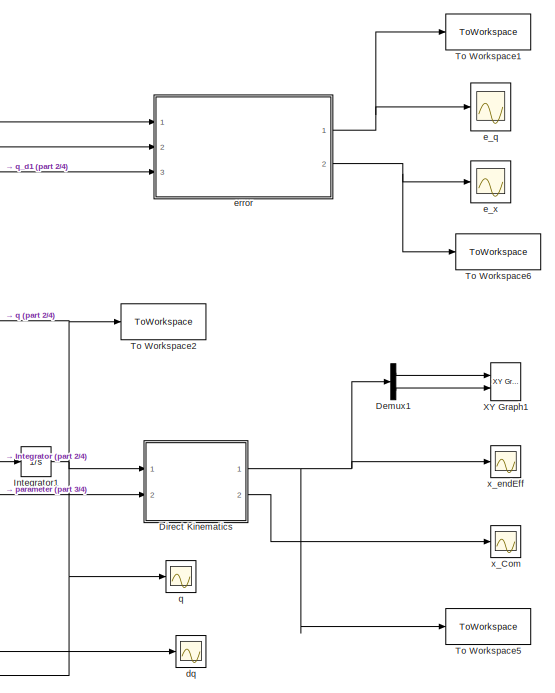
[diagram: root canvas - part 1/4, middle right region]
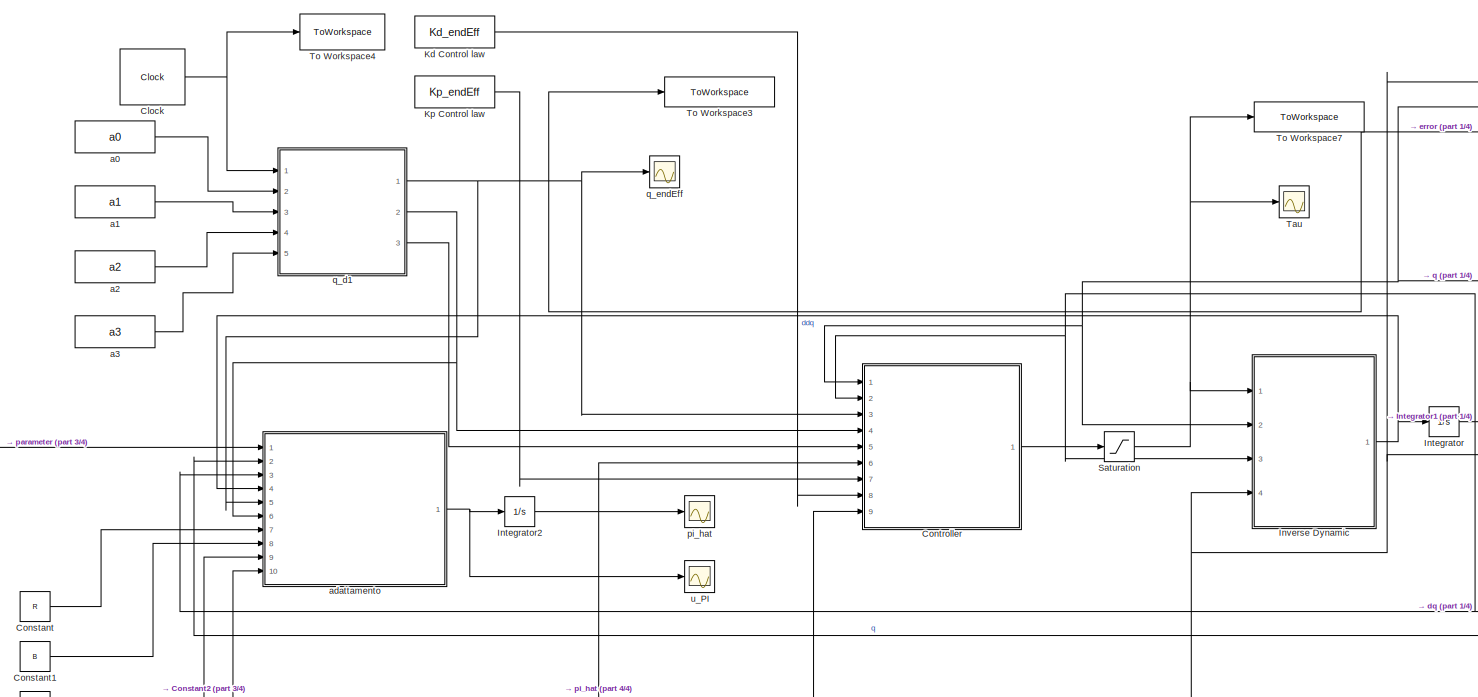
[diagram: root canvas - part 2/4, central region]
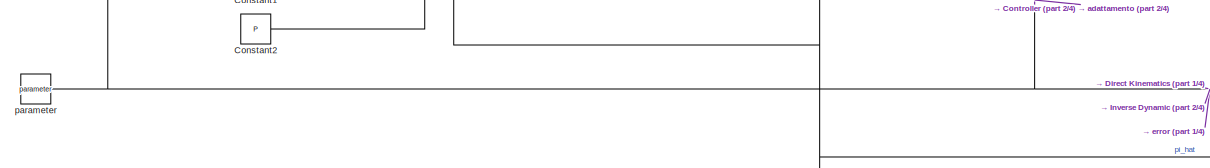
[diagram: root canvas - part 3/4, bottom left region]
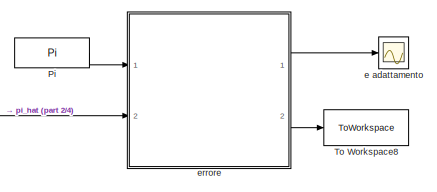
[diagram: root canvas - part 4/4, bottom right region]
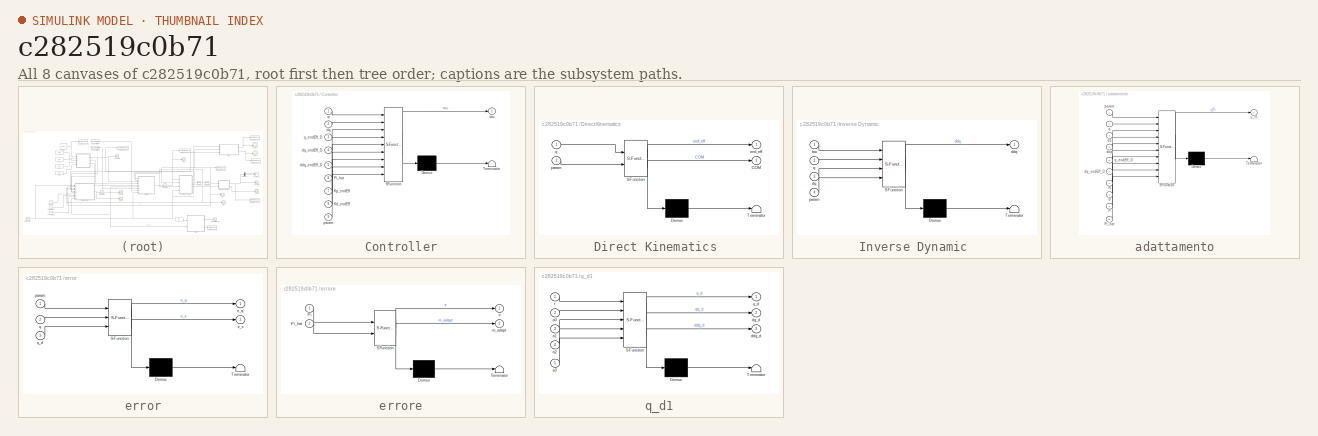
[diagram: thumbnail index - all 8 canvases of the model, root first then tree order]
MODEL slx_c282519c0b71
KIND model
CONFIG AbsTol = auto
CONFIG EnableMultiTasking = off
CONFIG FixedStep = auto
CONFIG MaxStep = auto
CONFIG MinStep = auto
CONFIG RelTol = auto
CONFIG SampleTimeConstraint = Unconstrained
CONFIG Solver = ode45
CONFIG SolverName = ode45
CONFIG StartTime = 0.0
CONFIG StopTime = 50
BLOCK [Clock] Clock
  DisplayTime = on
BLOCK [Constant] Constant
  Value = R
BLOCK [Constant] Constant1
  Value = B
BLOCK [Constant] Constant2
  Value = P
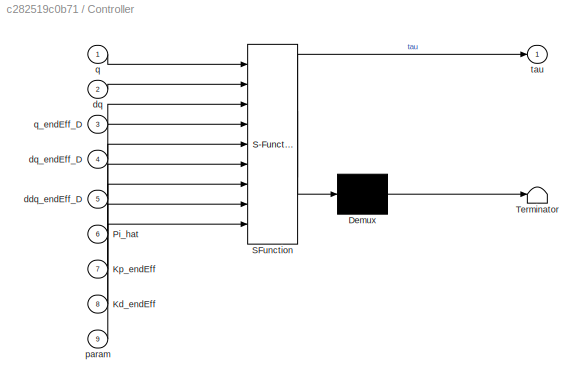
BLOCK [SubSystem] Controller
  ErrorFcn = Stateflow.Translate.translate
  PermitHierarchicalResolution = ExplicitOnly
  Ports = [9, 1]
  RequestExecContextInheritance = off
  SFBlockType = MATLAB Function
  TreatAsAtomicUnit = on
BLOCK [Demux] Controller/ Demux 
  Outputs = 1
  Ports = [1, 1]
BLOCK [S-Function] Controller/ SFunction 
  EnableBusSupport = on
  FunctionName = sf_sfun
  PortCounts = [9 2]
  Ports = [9, 2]
  SFcnIsStateOwnerBlock = off
  SFunctionDeploymentMode = off
  Tag = Stateflow S-Function 2
BLOCK [Terminator] Controller/ Terminator 
BLOCK [Inport] Controller/Kd_endEff
  IconDisplay = Port number
  Port = 8
BLOCK [Inport] Controller/Kp_endEff
  IconDisplay = Port number
  Port = 7
BLOCK [Inport] Controller/Pi_hat
  IconDisplay = Port number
  Port = 6
BLOCK [Inport] Controller/ddq_endEff_D
  IconDisplay = Port number
  Port = 5
BLOCK [Inport] Controller/dq
  IconDisplay = Port number
  Port = 2
BLOCK [Inport] Controller/dq_endEff_D
  IconDisplay = Port number
  Port = 4
BLOCK [Inport] Controller/param
  IconDisplay = Port number
  Port = 9
BLOCK [Inport] Controller/q
  IconDisplay = Port number
BLOCK [Inport] Controller/q_endEff_D
  IconDisplay = Port number
  Port = 3
BLOCK [Outport] Controller/tau
  IconDisplay = Port number
  VectorParamsAs1DForOutWhenUnconnected = off
BLOCK [Demux] Demux1
  DisplayOption = bar
  Outputs = 3
  Ports = [1, 3]
BLOCK [SubSystem] Direct Kinematics 
  ErrorFcn = Stateflow.Translate.translate
  PermitHierarchicalResolution = ExplicitOnly
  Ports = [2, 2]
  RequestExecContextInheritance = off
  SFBlockType = MATLAB Function
  TreatAsAtomicUnit = on
BLOCK [Demux] Direct Kinematics / Demux 
  Outputs = 1
  Ports = [1, 1]
BLOCK [S-Function] Direct Kinematics / SFunction 
  EnableBusSupport = on
  FunctionName = sf_sfun
  PortCounts = [2 3]
  Ports = [2, 3]
  SFcnIsStateOwnerBlock = off
  SFunctionDeploymentMode = off
  Tag = Stateflow S-Function 5
BLOCK [Terminator] Direct Kinematics / Terminator 
BLOCK [Outport] Direct Kinematics /COM
  IconDisplay = Port number
  Port = 2
  VectorParamsAs1DForOutWhenUnconnected = off
BLOCK [Outport] Direct Kinematics /end_eff
  IconDisplay = Port number
  VectorParamsAs1DForOutWhenUnconnected = off
BLOCK [Inport] Direct Kinematics /param
  IconDisplay = Port number
  Port = 2
BLOCK [Inport] Direct Kinematics /q
  IconDisplay = Port number
BLOCK [Integrator] Integrator
  InitialCondition = dq0
  Ports = [1, 1]
BLOCK [Integrator] Integrator1
  InitialCondition = q0
  Ports = [1, 1]
BLOCK [Integrator] Integrator2
  InitialCondition = Pi0
  Ports = [1, 1]
BLOCK [SubSystem] Inverse Dynamic 
  ErrorFcn = Stateflow.Translate.translate
  PermitHierarchicalResolution = ExplicitOnly
  Ports = [4, 1]
  RequestExecContextInheritance = off
  SFBlockType = MATLAB Function
  TreatAsAtomicUnit = on
BLOCK [Demux] Inverse Dynamic / Demux 
  Outputs = 1
  Ports = [1, 1]
BLOCK [S-Function] Inverse Dynamic / SFunction 
  EnableBusSupport = on
  FunctionName = sf_sfun
  PortCounts = [4 2]
  Ports = [4, 2]
  SFcnIsStateOwnerBlock = off
  SFunctionDeploymentMode = off
  Tag = Stateflow S-Function 4
BLOCK [Terminator] Inverse Dynamic / Terminator 
BLOCK [Outport] Inverse Dynamic /ddq
  IconDisplay = Port number
  VectorParamsAs1DForOutWhenUnconnected = off
BLOCK [Inport] Inverse Dynamic /dq
  IconDisplay = Port number
  Port = 3
BLOCK [Inport] Inverse Dynamic /param
  IconDisplay = Port number
  Port = 4
BLOCK [Inport] Inverse Dynamic /q
  IconDisplay = Port number
  Port = 2
BLOCK [Inport] Inverse Dynamic /tau
  IconDisplay = Port number
BLOCK [Constant] Kd Control law
  Value = Kd_endEff
BLOCK [Constant] Kp Control law
  Value = Kp_endEff
BLOCK [Constant] Pi
  Value = Pi
BLOCK [Saturate] Saturation
  InputPortMap = u0
  LowerLimit = -1500
  Ports = [1, 1]
  UpperLimit = 1500
BLOCK [Scope] Tau
  Floating = off
  NumInputPorts = 1
  Ports = [1]
  ScopeSpecificationString = Simulink.scopes.TimeScopeBlockCfg('CurrentConfiguration', extmgr.ConfigurationSet(extmgr.Configuration('Core','General UI',true),extmgr.Configuration('Core','Source UI',true),extmgr.Configuration('Sources','WiredSimulink',true,'DataLoggingVariableName','ScopeData8'),extmgr.Configuration('Visuals','Time Domain',true,'SerializedDisplays',{struct('MinYLimReal','-1000.00000','MaxYLimReal','1000.00000'...<+1539ch>
BLOCK [ToWorkspace] To Workspace1
  FixptAsFi = on
  MaxDataPoints = inf
  Ports = [1]
  SampleTime = -1
  SaveFormat = Structure With Time
  VariableName = e_joint
BLOCK [ToWorkspace] To Workspace2
  FixptAsFi = on
  MaxDataPoints = inf
  Ports = [1]
  SampleTime = -1
  SaveFormat = Structure With Time
  VariableName = q
BLOCK [ToWorkspace] To Workspace3
  FixptAsFi = on
  MaxDataPoints = inf
  Ports = [1]
  SampleTime = -1
  SaveFormat = Structure With Time
  VariableName = qd
BLOCK [ToWorkspace] To Workspace4
  FixptAsFi = on
  MaxDataPoints = inf
  Ports = [1]
  SampleTime = -1
  SaveFormat = Structure With Time
  VariableName = t_sim
BLOCK [ToWorkspace] To Workspace5
  FixptAsFi = on
  MaxDataPoints = inf
  Ports = [1]
  SampleTime = -1
  SaveFormat = Structure With Time
  VariableName = x
BLOCK [ToWorkspace] To Workspace6
  FixptAsFi = on
  MaxDataPoints = inf
  Ports = [1]
  SampleTime = -1
  SaveFormat = Structure With Time
  VariableName = e_x
BLOCK [ToWorkspace] To Workspace7
  FixptAsFi = on
  MaxDataPoints = inf
  Ports = [1]
  SampleTime = -1
  SaveFormat = Structure With Time
  VariableName = tau
BLOCK [ToWorkspace] To Workspace8
  FixptAsFi = on
  MaxDataPoints = inf
  Ports = [1]
  SampleTime = -1
  SaveFormat = Structure With Time
  VariableName = adattamento
BLOCK [Reference] XY Graph1  REF=simulink/Sinks/XY Graph
  Ports = [2]
  SourceBlock = simulink/Sinks/XY Graph
  SourceProductBaseCode = SL
  SourceProductName = Simulink
  SourceType = XY scope.
BLOCK [Constant] a0
  Value = a0
BLOCK [Constant] a1
  Value = a1
BLOCK [Constant] a2
  Value = a2
BLOCK [Constant] a3
  Value = a3
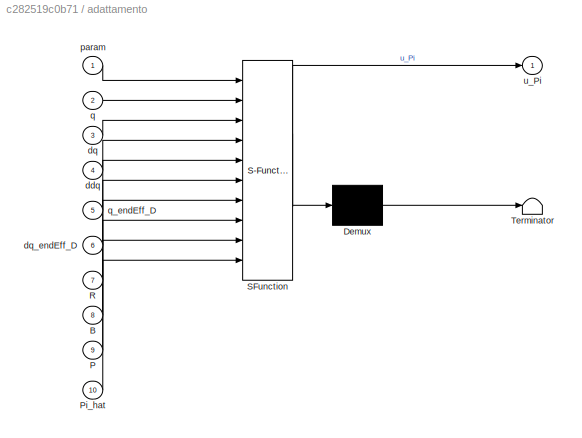
BLOCK [SubSystem] adattamento
  ErrorFcn = Stateflow.Translate.translate
  PermitHierarchicalResolution = ExplicitOnly
  Ports = [10, 1]
  RequestExecContextInheritance = off
  SFBlockType = MATLAB Function
  TreatAsAtomicUnit = on
BLOCK [Demux] adattamento/ Demux 
  Outputs = 1
  Ports = [1, 1]
BLOCK [S-Function] adattamento/ SFunction 
  EnableBusSupport = on
  FunctionName = sf_sfun
  PortCounts = [10 2]
  Ports = [10, 2]
  SFcnIsStateOwnerBlock = off
  SFunctionDeploymentMode = off
  Tag = Stateflow S-Function 3
BLOCK [Terminator] adattamento/ Terminator 
BLOCK [Inport] adattamento/B
  IconDisplay = Port number
  Port = 8
BLOCK [Inport] adattamento/P
  IconDisplay = Port number
  Port = 9
BLOCK [Inport] adattamento/Pi_hat
  IconDisplay = Port number
  Port = 10
BLOCK [Inport] adattamento/R
  IconDisplay = Port number
  Port = 7
BLOCK [Inport] adattamento/ddq
  IconDisplay = Port number
  Port = 4
BLOCK [Inport] adattamento/dq
  IconDisplay = Port number
  Port = 3
BLOCK [Inport] adattamento/dq_endEff_D
  IconDisplay = Port number
  Port = 6
BLOCK [Inport] adattamento/param
  IconDisplay = Port number
BLOCK [Inport] adattamento/q
  IconDisplay = Port number
  Port = 2
BLOCK [Inport] adattamento/q_endEff_D
  IconDisplay = Port number
  Port = 5
BLOCK [Outport] adattamento/u_Pi
  IconDisplay = Port number
  VectorParamsAs1DForOutWhenUnconnected = off
BLOCK [Scope] dq
  Floating = off
  NumInputPorts = 1
  Ports = [1]
  ScopeSpecificationString = Simulink.scopes.TimeScopeBlockCfg('CurrentConfiguration', extmgr.ConfigurationSet(extmgr.Configuration('Core','General UI',true),extmgr.Configuration('Core','Source UI',true),extmgr.Configuration('Sources','WiredSimulink',true,'DataLoggingVariableName','ScopeData1'),extmgr.Configuration('Visuals','Time Domain',true,'SerializedDisplays',{struct('MinYLimReal','-0.09319','MaxYLimReal','0.21035','YLab...<+1497ch>
BLOCK [Scope] e adattamento
  Floating = off
  NumInputPorts = 1
  Ports = [1]
  ScopeSpecificationString = Simulink.scopes.TimeScopeBlockCfg('CurrentConfiguration', extmgr.ConfigurationSet(extmgr.Configuration('Core','General UI',true),extmgr.Configuration('Core','Source UI',true),extmgr.Configuration('Sources','WiredSimulink',true,'DataLoggingVariableName','ScopeData1'),extmgr.Configuration('Visuals','Time Domain',true,'SerializedDisplays',{struct('MinYLimReal','-1.13232','MaxYLimReal','6.64885','YLab...<+1780ch>
BLOCK [Scope] e_q
  Floating = off
  NumInputPorts = 1
  Ports = [1]
  ScopeSpecificationString = Simulink.scopes.TimeScopeBlockCfg('CurrentConfiguration', extmgr.ConfigurationSet(extmgr.Configuration('Core','General UI',true),extmgr.Configuration('Core','Source UI',true),extmgr.Configuration('Sources','WiredSimulink',true,'DataLoggingVariableName','ScopeData6'),extmgr.Configuration('Visuals','Time Domain',true,'SerializedDisplays',{struct('MinYLimReal','-0.0000022','MaxYLimReal','0.0000024','...<+1525ch>
BLOCK [Scope] e_x
  Floating = off
  NumInputPorts = 1
  Ports = [1]
  ScopeSpecificationString = Simulink.scopes.TimeScopeBlockCfg('CurrentConfiguration', extmgr.ConfigurationSet(extmgr.Configuration('Core','General UI',true),extmgr.Configuration('Core','Source UI',true),extmgr.Configuration('Sources','WiredSimulink',true,'DataLoggingVariableName','ScopeData7'),extmgr.Configuration('Visuals','Time Domain',true,'SerializedDisplays',{struct('MinYLimReal','-0.1927','MaxYLimReal','0.17698','YLabe...<+1465ch>
BLOCK [SubSystem] error
  ErrorFcn = Stateflow.Translate.translate
  PermitHierarchicalResolution = ExplicitOnly
  Ports = [3, 2]
  RequestExecContextInheritance = off
  SFBlockType = MATLAB Function
  TreatAsAtomicUnit = on
BLOCK [Demux] error/ Demux 
  Outputs = 1
  Ports = [1, 1]
BLOCK [S-Function] error/ SFunction 
  EnableBusSupport = on
  FunctionName = sf_sfun
  PortCounts = [3 3]
  Ports = [3, 3]
  SFcnIsStateOwnerBlock = off
  SFunctionDeploymentMode = off
  Tag = Stateflow S-Function 7
BLOCK [Terminator] error/ Terminator 
BLOCK [Outport] error/e_q
  IconDisplay = Port number
  VectorParamsAs1DForOutWhenUnconnected = off
BLOCK [Outport] error/e_x
  IconDisplay = Port number
  Port = 2
  VectorParamsAs1DForOutWhenUnconnected = off
BLOCK [Inport] error/param
  IconDisplay = Port number
BLOCK [Inport] error/q
  IconDisplay = Port number
  Port = 2
BLOCK [Inport] error/q_d
  IconDisplay = Port number
  Port = 3
BLOCK [SubSystem] errore
  ErrorFcn = Stateflow.Translate.translate
  PermitHierarchicalResolution = ExplicitOnly
  Ports = [2, 2]
  RequestExecContextInheritance = off
  SFBlockType = MATLAB Function
  TreatAsAtomicUnit = on
BLOCK [Demux] errore/ Demux 
  Outputs = 1
  Ports = [1, 1]
BLOCK [S-Function] errore/ SFunction 
  EnableBusSupport = on
  FunctionName = sf_sfun
  PortCounts = [2 3]
  Ports = [2, 3]
  SFcnIsStateOwnerBlock = off
  SFunctionDeploymentMode = off
  Tag = Stateflow S-Function 1
BLOCK [Terminator] errore/ Terminator 
BLOCK [Inport] errore/Pi
  IconDisplay = Port number
BLOCK [Inport] errore/Pi_hat
  IconDisplay = Port number
  Port = 2
BLOCK [Outport] errore/e
  IconDisplay = Port number
BLOCK [Outport] errore/m_adapt
  IconDisplay = Port number
  Port = 2
BLOCK [Constant] parameter 
  Value = parameter
BLOCK [Scope] pi_hat
  Floating = off
  NumInputPorts = 1
  Ports = [1]
  ScopeSpecificationString = Simulink.scopes.TimeScopeBlockCfg('CurrentConfiguration', extmgr.ConfigurationSet(extmgr.Configuration('Core','General UI',true),extmgr.Configuration('Core','Source UI',true),extmgr.Configuration('Sources','WiredSimulink',true),extmgr.Configuration('Visuals','Time Domain',true,'SerializedDisplays',{struct('MinYLimReal','-231.67595','MaxYLimReal','34.23208','YLabelReal','','MinYLimMag',' 0.00000','...<+1512ch>
BLOCK [Scope] q
  Floating = off
  NumInputPorts = 1
  Ports = [1]
  ScopeSpecificationString = Simulink.scopes.TimeScopeBlockCfg('CurrentConfiguration', extmgr.ConfigurationSet(extmgr.Configuration('Core','General UI',true),extmgr.Configuration('Core','Source UI',true),extmgr.Configuration('Sources','WiredSimulink',true,'DataLoggingVariableName','ScopeData1'),extmgr.Configuration('Visuals','Time Domain',true,'SerializedDisplays',{struct('MinYLimReal','-1.5531','MaxYLimReal','3.5059','YLabel...<+1439ch>
BLOCK [SubSystem] q_d1
  ErrorFcn = Stateflow.Translate.translate
  PermitHierarchicalResolution = ExplicitOnly
  Ports = [5, 3]
  RequestExecContextInheritance = off
  SFBlockType = MATLAB Function
  TreatAsAtomicUnit = on
BLOCK [Demux] q_d1/ Demux 
  Outputs = 1
  Ports = [1, 1]
BLOCK [S-Function] q_d1/ SFunction 
  EnableBusSupport = on
  FunctionName = sf_sfun
  PortCounts = [5 4]
  Ports = [5, 4]
  SFcnIsStateOwnerBlock = off
  SFunctionDeploymentMode = off
  Tag = Stateflow S-Function 6
BLOCK [Terminator] q_d1/ Terminator 
BLOCK [Inport] q_d1/a0
  IconDisplay = Port number
  Port = 2
BLOCK [Inport] q_d1/a1
  IconDisplay = Port number
  Port = 3
BLOCK [Inport] q_d1/a2
  IconDisplay = Port number
  Port = 4
BLOCK [Inport] q_d1/a3
  IconDisplay = Port number
  Port = 5
BLOCK [Outport] q_d1/ddq_d
  IconDisplay = Port number
  Port = 3
  VectorParamsAs1DForOutWhenUnconnected = off
BLOCK [Outport] q_d1/dq_d
  IconDisplay = Port number
  Port = 2
  VectorParamsAs1DForOutWhenUnconnected = off
BLOCK [Outport] q_d1/q_d
  IconDisplay = Port number
  VectorParamsAs1DForOutWhenUnconnected = off
BLOCK [Inport] q_d1/t
  IconDisplay = Port number
BLOCK [Scope] q_endEff
  Floating = off
  NumInputPorts = 1
  Ports = [1]
  ScopeSpecificationString = Simulink.scopes.TimeScopeBlockCfg('CurrentConfiguration', extmgr.ConfigurationSet(extmgr.Configuration('Core','General UI',true),extmgr.Configuration('Core','Source UI',true),extmgr.Configuration('Sources','WiredSimulink',true,'DataLoggingVariableName','ScopeData3'),extmgr.Configuration('Visuals','Time Domain',true,'SerializedDisplays',{struct('MinYLimReal','-1.37445','MaxYLimReal','1.89805','YLab...<+1477ch>
BLOCK [Scope] u_PI
  Floating = off
  NumInputPorts = 1
  Ports = [1]
  ScopeSpecificationString = Simulink.scopes.TimeScopeBlockCfg('CurrentConfiguration', extmgr.ConfigurationSet(extmgr.Configuration('Core','General UI',true),extmgr.Configuration('Core','Source UI',true),extmgr.Configuration('Sources','WiredSimulink',true,'DataLoggingVariableName','ScopeData1'),extmgr.Configuration('Visuals','Time Domain',true,'SerializedDisplays',{struct('MinYLimReal','-0.75657','MaxYLimReal','0.8259','YLabe...<+1893ch>
BLOCK [Scope] x_Com
  Floating = off
  NumInputPorts = 1
  Ports = [1]
  ScopeSpecificationString = Simulink.scopes.TimeScopeBlockCfg('CurrentConfiguration', extmgr.ConfigurationSet(extmgr.Configuration('Core','General UI',true),extmgr.Configuration('Core','Source UI',true),extmgr.Configuration('Sources','WiredSimulink',true,'DataLoggingVariableName','ScopeData4'),extmgr.Configuration('Visuals','Time Domain',true,'SerializedDisplays',{struct('MinYLimReal','-0.15826','MaxYLimReal','0.25758','YLab...<+1437ch>
BLOCK [Scope] x_endEff
  Floating = off
  NumInputPorts = 1
  Ports = [1]
  ScopeSpecificationString = Simulink.scopes.TimeScopeBlockCfg('CurrentConfiguration', extmgr.ConfigurationSet(extmgr.Configuration('Core','General UI',true),extmgr.Configuration('Core','Source UI',true),extmgr.Configuration('Sources','WiredSimulink',true,'DataLoggingVariableName','ScopeData5'),extmgr.Configuration('Visuals','Time Domain',true,'SerializedDisplays',{struct('MinYLimReal','-3.40446','MaxYLimReal','2.9851','YLabe...<+1472ch>
NET Clock:1 -> To Workspace4:1, q_d1:1
LINE Constant1:1 -> adattamento:8
LINE Constant2:1 -> adattamento:9
LINE Constant:1 -> adattamento:7
LINE Controller:1 -> Saturation:1
LINE Demux1:1 -> XY Graph1:1
LINE Demux1:3 -> XY Graph1:2
NET Direct Kinematics :1 -> Demux1:1, To Workspace5:1, x_endEff:1
LINE Direct Kinematics :2 -> x_Com:1
NET Integrator1:1 -> Controller:1, Direct Kinematics :1, Inverse Dynamic :2, To Workspace2:1, adattamento:2, error:2, q:1
NET Integrator2:1 -> Controller:6, adattamento:10, errore:2, pi_hat:1
NET Integrator:1 -> Controller:2, Integrator1:1, Inverse Dynamic :3, adattamento:3, dq:1
NET Inverse Dynamic :1 -> Integrator:1, adattamento:4
LINE Kd Control law:1 -> Controller:8
LINE Kp Control law:1 -> Controller:7
LINE Pi:1 -> errore:1
NET Saturation:1 -> Inverse Dynamic :1, Tau:1, To Workspace7:1
LINE a0:1 -> q_d1:2
LINE a1:1 -> q_d1:3
LINE a2:1 -> q_d1:4
LINE a3:1 -> q_d1:5
NET adattamento:1 -> Integrator2:1, u_PI:1
NET error:1 -> To Workspace1:1, e_q:1
NET error:2 -> To Workspace6:1, e_x:1
LINE errore:1 -> e adattamento:1
LINE errore:2 -> To Workspace8:1
NET parameter :1 -> Controller:9, Direct Kinematics :2, Inverse Dynamic :4, adattamento:1, error:1
NET q_d1:1 -> Controller:3, To Workspace3:1, adattamento:5, error:3, q_endEff:1
NET q_d1:2 -> Controller:4, adattamento:6
LINE q_d1:3 -> Controller:5
note: NET lines group one-source signal fan-out (src -> all destinations, sorted); 1:1 wires keep LINE
CHART errore states=1 transitions=1
  STATE_LABEL 'eML_blk_kernel()'
  STATE_LABEL "SCRIPT:\nfunction [e, m_adapt]  = ErroreAdattamento(Pi, Pi_hat)\n    \n    e = Pi - Pi_hat;\n    \n    m_adapt = [Pi_hat(1,1), Pi_hat(2,1), Pi_hat(3,1), Pi_hat(4,1), Pi_hat(5,1), Pi_hat(6,1)]';\n\nend\n"
CHART Controller states=1 transitions=1
  STATE_LABEL 'eML_blk_kernel()'
  STATE_LABEL 'SCRIPT:\nfunction tau  = x_now(q, dq, q_endEff_D, dq_endEff_D, ddq_endEff_D, Pi_hat, Kp_endEff, Kd_endEff, param)\n\n% ddq, \n%     Y = Y_fun(param, q, dq, ddq);\n    Y = Y_fun(param, q, dq, ddq_endEff_D); \n\n    %% controllo Diretto\n    \n    e_endEff = q_endEff_D - q;\n    de_endEff = dq_endEff_D - dq;\n    \n    tau = Y*Pi_hat + Kp_endEff*e_endEff + Kd_endEff*de_endEff;\n\nend'
CHART adattamento states=1 transitions=1
  STATE_LABEL 'eML_blk_kernel()'
  STATE_LABEL "SCRIPT:\nfunction u_Pi = Adattamento(param, q, dq, ddq, q_endEff_D, dq_endEff_D, R, B, P, Pi_hat)\n\n    m_hat = [Pi_hat(1), Pi_hat(2),Pi_hat(3), Pi_hat(4), Pi_hat(5), Pi_hat(6)]';\n    param_hat = [param(:,1), m_hat, param(:,3)];\n    \n    %param è corretto qui perchè tanto Y_fun non \n    %è funzione dei parametri da adattare.\n    Y = Y_fun(param, q, dq, ddq);\n    \n    M_hat = B_fun(param_hat, q);\n\n  ...<+152ch>"
CHART Inverse Dynamic
 states=1 transitions=1
  STATE_LABEL 'eML_blk_kernel()'
  STATE_LABEL 'SCRIPT:\nfunction ddq = inverseDynamic(tau,q,dq,param)\n\n    B = B_fun(param, q);\n    C = C_fun(param, q, dq);\n    G = G_fun(param, q);\n\n    ddq = B\\(tau - G - C*dq);\n\nend\n'
CHART Direct Kinematics
 states=1 transitions=1
  STATE_LABEL 'eML_blk_kernel()'
  STATE_LABEL 'SCRIPT:\nfunction [end_eff, COM] = DirectK(q,param)\n\n\n    [Pcom, Etip,T00,T01,T12,T23,T34,T45,T56] =  forwardKinematics(param, q);\n    \n    \n    end_eff = Etip(1:3,4);\n    COM = Pcom;\n    \nend'
CHART q_d1 states=1 transitions=1
  STATE_LABEL 'eML_blk_kernel()'
  STATE_LABEL 'SCRIPT:\nfunction [q_d,dq_d,ddq_d] = desiderable_q(t, a0,a1,a2,a3)\n\n    [q_d, dq_d, ddq_d] = vettoreq(a0,a1,a2,a3,t);\n    \nend\n'
CHART error states=1 transitions=1
  STATE_LABEL 'eML_blk_kernel()'
  STATE_LABEL 'SCRIPT:\nfunction [e_q, e_x]  = error(param, q, q_d)\n    \n\n%     [~, Etip,~,~,~,~,~,~,~] =  forwardKinematics(param, q*pi/180);\n%     [~, Etip_d,~,~,~,~,~,~,~] =  forwardKinematics(param, q_d*pi/180);  \n\n    [~, Etip,~,~,~,~,~,~,~] =  forwardKinematics(param, q);\n    [~, Etip_d,~,~,~,~,~,~,~] =  forwardKinematics(param, q_d);  \n\n    e_x = Etip_d(1:3,4) - Etip(1:3,4);\n\n    e_q = q_d - q;\n    \nend'
